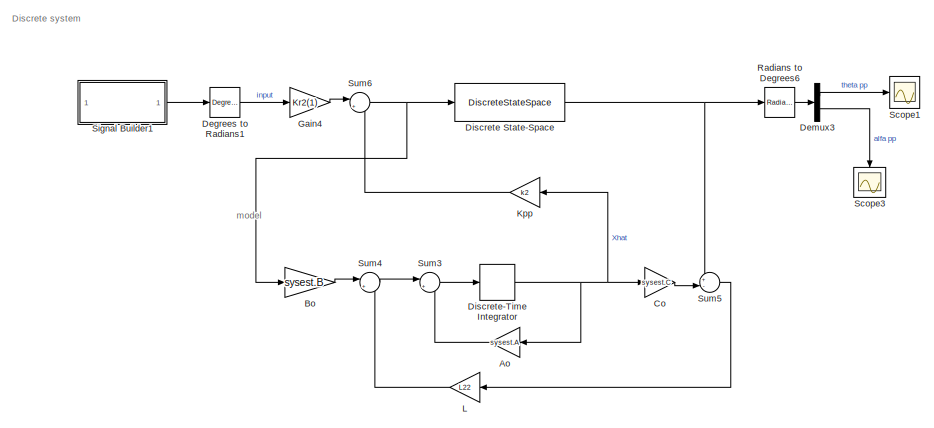
[diagram: root canvas - part 1/5, top right region]
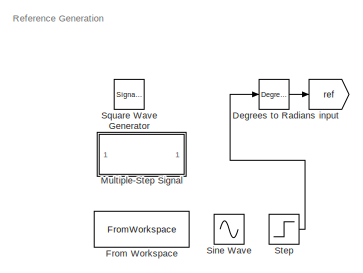
[diagram: root canvas - part 2/5, middle left region]
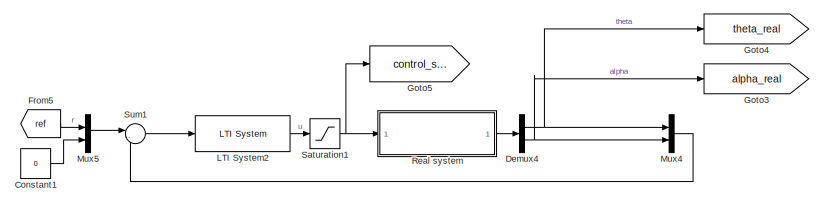
[diagram: root canvas - part 3/5, middle right region]
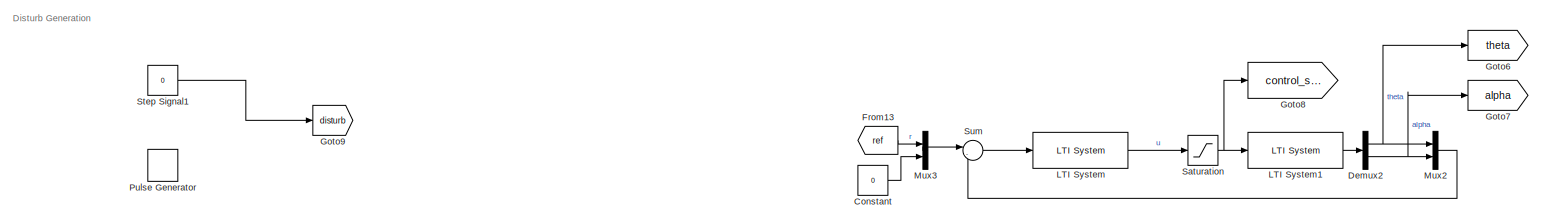
[diagram: root canvas - part 4/5, full width, bottom band]
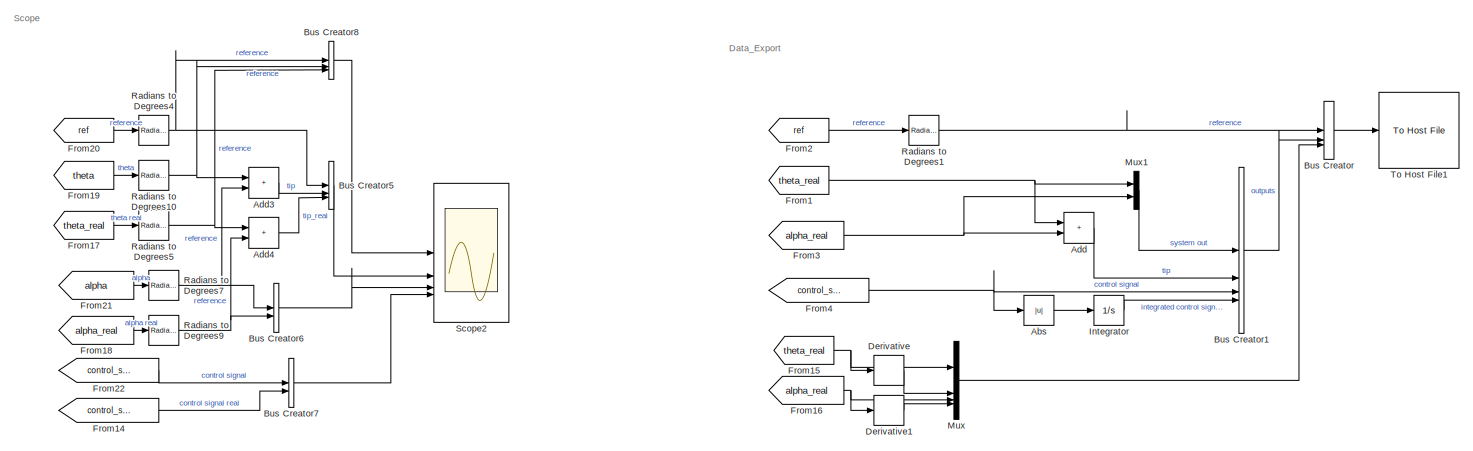
[diagram: root canvas - part 5/5, full width, bottom band]
MODEL slx_47b63cbfeedf
KIND model
CONFIG AbsTol = auto
CONFIG EnableMultiTasking = on
CONFIG FixedStep = 0.002
CONFIG MaxStep = auto
CONFIG MinStep = auto
CONFIG PostLoadFcn = qc_set_target_type(getConfigSet(bdroot, 'QUARC Default Target Configuration'));
CONFIG RelTol = 1e-3
CONFIG SampleTimeConstraint = Unconstrained
CONFIG SolverName = FixedStepAuto
CONFIG StartTime = 0.0
CONFIG StopTime = inf
BLOCK [Abs] Abs
  Commented = on
  SaturateOnIntegerOverflow = off
BLOCK [Sum] Add
  Commented = on
  IconShape = rectangular
BLOCK [Sum] Add3
  IconShape = rectangular
BLOCK [Sum] Add4
  IconShape = rectangular
BLOCK [Gain] Ao
  Commented = on
  Gain = sysest.A
  Multiplication = Matrix(K*u)
  NameLocation = top
BLOCK [Gain] Bo
  Commented = on
  Gain = sysest.B
  Multiplication = Matrix(K*u)
BLOCK [BusCreator] Bus Creator
  Commented = on
  DisplayOption = bar
  InheritFromInputs = on
  Inputs = 3
BLOCK [BusCreator] Bus Creator1
  Commented = on
  DisplayOption = bar
  InheritFromInputs = on
  Inputs = 4
BLOCK [BusCreator] Bus Creator5
  DisplayOption = bar
  InheritFromInputs = on
  Inputs = 3
BLOCK [BusCreator] Bus Creator6
  DisplayOption = bar
  InheritFromInputs = on
  Inputs = 2
BLOCK [BusCreator] Bus Creator7
  DisplayOption = bar
  InheritFromInputs = on
  Inputs = 2
BLOCK [BusCreator] Bus Creator8
  DisplayOption = bar
  InheritFromInputs = on
  Inputs = 3
BLOCK [Gain] Co
  Commented = on
  Gain = sysest.C
  Multiplication = Matrix(K*u)
BLOCK [Constant] Constant
  Value = 0
BLOCK [Constant] Constant1
  Commented = on
  Value = 0
BLOCK [Reference] Degrees to Radians  REF=simulink_extras/Transformations/Degrees to
Radians
  SourceBlock = simulink_extras/Transformations/Degrees to\nRadians
  SourceType = DegreesToRadians
BLOCK [Reference] Degrees to Radians1  REF=simulink_extras/Transformations/Degrees to
Radians
  Commented = on
  SourceBlock = simulink_extras/Transformations/Degrees to\nRadians
  SourceType = DegreesToRadians
BLOCK [Demux] Demux2
  Outputs = 2
BLOCK [Demux] Demux3
  Commented = on
  Outputs = 2
BLOCK [Demux] Demux4
  Commented = on
  Outputs = 2
BLOCK [Derivative] Derivative
  Commented = on
BLOCK [Derivative] Derivative1
  Commented = on
BLOCK [DiscreteStateSpace] Discrete State-Space
  A = sysest.A
  B = sysest.B
  C = sysest.C
  Commented = on
  D = sysest.D
  SampleTime = 0.002
BLOCK [DiscreteIntegrator] Discrete-Time Integrator
  Commented = on
  ICPrevOutput = DiscIntNeverNeededParam
  ICPrevScaledInput = DiscIntNeverNeededParam
  InitialConditionSetting = Auto
  SampleTime = 0.002
BLOCK [FromWorkspace] From Workspace
  Commented = on
  VariableName = reference_simulink
BLOCK [From] From1
  Commented = on
  GotoTag = theta_real
BLOCK [From] From13
  GotoTag = ref
BLOCK [From] From14
  GotoTag = control_signal_real
BLOCK [From] From15
  Commented = on
  GotoTag = theta_real
BLOCK [From] From16
  Commented = on
  GotoTag = alpha_real
BLOCK [From] From17
  GotoTag = theta_real
BLOCK [From] From18
  GotoTag = alpha_real
BLOCK [From] From19
  GotoTag = theta
BLOCK [From] From2
  Commented = on
  GotoTag = ref
BLOCK [From] From20
  GotoTag = ref
BLOCK [From] From21
  GotoTag = alpha
BLOCK [From] From22
  GotoTag = control_signal
BLOCK [From] From3
  Commented = on
  GotoTag = alpha_real
BLOCK [From] From4
  Commented = on
  GotoTag = control_signal
BLOCK [From] From5
  Commented = on
  GotoTag = ref
BLOCK [Gain] Gain4
  Commented = on
  Gain = Kr2(1)
BLOCK [Goto] Goto3
  Commented = on
  GotoTag = alpha_real
BLOCK [Goto] Goto4
  Commented = on
  GotoTag = theta_real
BLOCK [Goto] Goto5
  Commented = on
  GotoTag = control_signal_real
BLOCK [Goto] Goto6
  GotoTag = theta
BLOCK [Goto] Goto7
  GotoTag = alpha
BLOCK [Goto] Goto8
  GotoTag = control_signal
BLOCK [Goto] Goto9
  GotoTag = disturb
BLOCK [Integrator] Integrator
  Commented = on
BLOCK [Gain] Kpp
  Commented = on
  Gain = k2
  Multiplication = Matrix(K*u)
  NameLocation = top
BLOCK [Gain] L
  Commented = on
  Gain = L22
  Multiplication = Matrix(K*u)
  NameLocation = top
BLOCK [Reference] LTI System  REF=cstblocks/LTI System
  SourceBlock = cstblocks/LTI System
  SourceType = LTI Block
BLOCK [Reference] LTI System1  REF=cstblocks/LTI System
  SourceBlock = cstblocks/LTI System
  SourceType = LTI Block
BLOCK [Reference] LTI System2  REF=cstblocks/LTI System
  Commented = on
  SourceBlock = cstblocks/LTI System
  SourceType = LTI Block
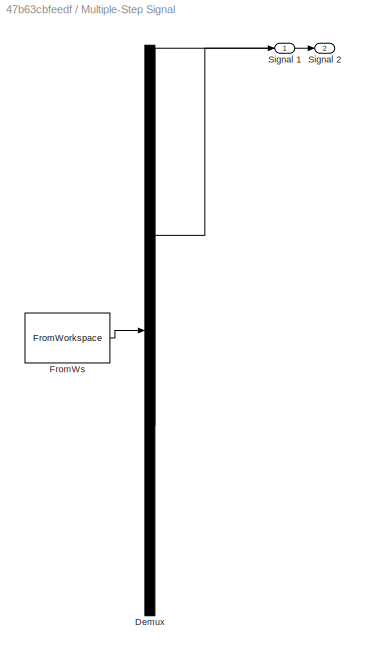
BLOCK [SubSystem] Multiple-Step Signal
  ClipboardFcn = sigbuilder_block('clipboard');
  CloseFcn = sigbuilder_block('close');
  ContinueFcn = sigbuilder_block('continue');
  CopyFcn = sigbuilder_block('copy');
  DeleteFcn = sigbuilder_block('delete');
  LoadFcn = sigbuilder_block('load');
  MaskHideContents = on
  ModelCloseFcn = sigbuilder_block('modelClose');
  NameChangeFcn = sigbuilder_block('namechange');
  OpenFcn = sigbuilder_block('open',[6 30 1428 681.75 ]);
  PauseFcn = sigbuilder_block('pause');
  PreSaveFcn = sigbuilder_block('preSave');
  StartFcn = sigbuilder_block('start');
  StopFcn = sigbuilder_block('stop');
  Tag = STV Subsys
BLOCK [Demux] Multiple-Step Signal/Demux
  DisplayOption = none
  Outputs = 2
  Tag = STV Demux
BLOCK [FromWorkspace] Multiple-Step Signal/FromWs
  Tag = STV FromWs
  VariableName = tuvar
BLOCK [Outport] Multiple-Step Signal/Signal 1
  Tag = STV Outport
BLOCK [Outport] Multiple-Step Signal/Signal 2
  Port = 2
  Tag = STV Outport
BLOCK [Mux] Mux
  Commented = on
  DisplayOption = bar
BLOCK [Mux] Mux1
  Commented = on
  DisplayOption = bar
  Inputs = 2
BLOCK [Mux] Mux2
  DisplayOption = bar
  Inputs = 2
BLOCK [Mux] Mux3
  DisplayOption = bar
  Inputs = 2
BLOCK [Mux] Mux4
  Commented = on
  DisplayOption = bar
  Inputs = 2
BLOCK [Mux] Mux5
  Commented = on
  DisplayOption = bar
  Inputs = 2
BLOCK [DiscretePulseGenerator] Pulse Generator
  Period = 10
  PulseType = Time based
  PulseWidth = 5
BLOCK [Reference] Radians to Degrees1  REF=simulink_extras/Transformations/Radians
to Degrees
  Commented = on
  SourceBlock = simulink_extras/Transformations/Radians\nto Degrees
  SourceType = RadiansToDegrees
BLOCK [Reference] Radians to Degrees10  REF=simulink_extras/Transformations/Radians
to Degrees
  SourceBlock = simulink_extras/Transformations/Radians\nto Degrees
  SourceType = RadiansToDegrees
BLOCK [Reference] Radians to Degrees4  REF=simulink_extras/Transformations/Radians
to Degrees
  SourceBlock = simulink_extras/Transformations/Radians\nto Degrees
  SourceType = RadiansToDegrees
BLOCK [Reference] Radians to Degrees5  REF=simulink_extras/Transformations/Radians
to Degrees
  SourceBlock = simulink_extras/Transformations/Radians\nto Degrees
  SourceType = RadiansToDegrees
BLOCK [Reference] Radians to Degrees6  REF=simulink_extras/Transformations/Radians
to Degrees
  Commented = on
  SourceBlock = simulink_extras/Transformations/Radians\nto Degrees
  SourceType = RadiansToDegrees
BLOCK [Reference] Radians to Degrees7  REF=simulink_extras/Transformations/Radians
to Degrees
  SourceBlock = simulink_extras/Transformations/Radians\nto Degrees
  SourceType = RadiansToDegrees
BLOCK [Reference] Radians to Degrees9  REF=simulink_extras/Transformations/Radians
to Degrees
  SourceBlock = simulink_extras/Transformations/Radians\nto Degrees
  SourceType = RadiansToDegrees
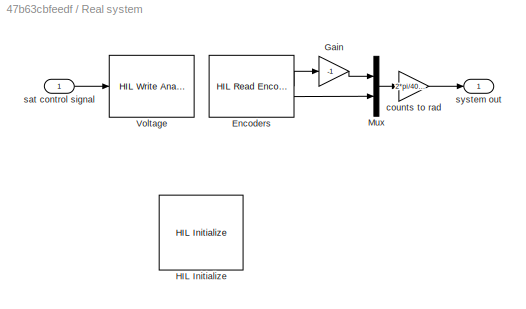
BLOCK [SubSystem] Real system
  Commented = on
BLOCK [Reference] Real system/Encoders  REF=quarc_library/Data Acquisition/Generic/Timebases/HIL Read Encoder
Timebase
  AttributesFormatString = (%<object_name>)
  SourceBlock = quarc_library/Data Acquisition/Generic/Timebases/HIL Read Encoder\nTimebase
  SourceType = HIL Read Encoder Timebase
  UserDataPersistent = on
BLOCK [Gain] Real system/Gain
  Gain = -1
BLOCK [Reference] Real system/HIL Initialize  REF=quarc_library/Data Acquisition/Generic/Configuration/HIL Initialize
  AttributesFormatString = %<object_name> (%<board_type>-%<board_number>)
  Priority = -99
  SourceBlock = quarc_library/Data Acquisition/Generic/Configuration/HIL Initialize
  SourceType = HIL Initialize
  UserDataPersistent = on
BLOCK [Mux] Real system/Mux
  DisplayOption = bar
  Inputs = 2
BLOCK [Reference] Real system/Voltage  REF=quarc_library/Data Acquisition/Generic/Immediate I//O/HIL Write Analog
  AttributesFormatString = (%<object_name>)
  SourceBlock = quarc_library/Data Acquisition/Generic/Immediate I//O/HIL Write Analog
  SourceType = HIL Write Analog
  UserDataPersistent = on
BLOCK [Gain] Real system/counts to rad
  Gain = 2*pi/4096
BLOCK [Inport] Real system/sat control signal
BLOCK [Outport] Real system/system out
BLOCK [Saturate] Saturation
  LowerLimit = -v_a_max
  UpperLimit = v_a_max
BLOCK [Saturate] Saturation1
  Commented = on
  LowerLimit = -v_a_max
  UpperLimit = v_a_max
BLOCK [Scope] Scope1
  Commented = on
  Floating = off
  NumInputPorts = 1
  ScopeSpecificationString = Simulink.scopes.TimeScopeBlockCfg('CurrentConfiguration', extmgr.ConfigurationSet(extmgr.Configuration('Core','General UI',true),extmgr.Configuration('Core','Source UI',true),extmgr.Configuration('Sources','WiredSimulink',true,'DataLoggingVariableName','ScopeData1'),extmgr.Configuration('Visuals','Time Domain',true,'SerializedDisplays',{struct('MinYLimReal','-7987.43396','MaxYLimReal','71886.90564...<+1393ch>
BLOCK [Scope] Scope2
  Floating = off
  NumInputPorts = 4
  ScopeSpecificationString = Simulink.scopes.TimeScopeBlockCfg('CurrentConfiguration', extmgr.ConfigurationSet(extmgr.Configuration('Core','General UI',true,'FigureColor',[1 1 1]),extmgr.Configuration('Core','Source UI',true),extmgr.Configuration('Sources','WiredSimulink',true,'DataLoggingVariableName','ScopeData1'),extmgr.Configuration('Visuals','Time Domain',true,'SerializedDisplays',{struct('MinYLimReal','-5.83854','MaxYLi...<+4523ch>
BLOCK [Scope] Scope3
  Commented = on
  Floating = off
  NameLocation = left
  NumInputPorts = 1
  ScopeSpecificationString = Simulink.scopes.TimeScopeBlockCfg('CurrentConfiguration', extmgr.ConfigurationSet(extmgr.Configuration('Core','General UI',true),extmgr.Configuration('Core','Source UI',true),extmgr.Configuration('Sources','WiredSimulink',true,'DataLoggingVariableName','ScopeData2'),extmgr.Configuration('Visuals','Time Domain',true,'SerializedDisplays',{struct('MinYLimReal','-5.40954','MaxYLimReal','28.86792','YLa...<+1370ch>
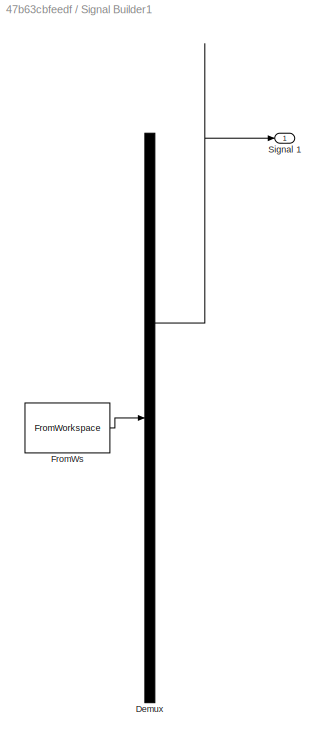
BLOCK [SubSystem] Signal Builder1
  ClipboardFcn = sigbuilder_block('clipboard');
  CloseFcn = sigbuilder_block('close');
  Commented = on
  ContinueFcn = sigbuilder_block('continue');
  CopyFcn = sigbuilder_block('copy');
  DeleteFcn = sigbuilder_block('delete');
  LoadFcn = sigbuilder_block('load');
  MaskHideContents = on
  ModelCloseFcn = sigbuilder_block('modelClose');
  NameChangeFcn = sigbuilder_block('namechange');
  OpenFcn = sigbuilder_block('open',[437.6 199.2 550.4 400 ]);
  PauseFcn = sigbuilder_block('pause');
  PreSaveFcn = sigbuilder_block('preSave');
  StartFcn = sigbuilder_block('start');
  StopFcn = sigbuilder_block('stop');
  Tag = STV Subsys
BLOCK [Demux] Signal Builder1/Demux
  DisplayOption = none
  Outputs = 1
  Tag = STV Demux
BLOCK [FromWorkspace] Signal Builder1/FromWs
  Tag = STV FromWs
  VariableName = tuvar
BLOCK [Outport] Signal Builder1/Signal 1
  Tag = STV Outport
BLOCK [Sin] Sine Wave
  Amplitude = 15
  Frequency = 4
  SampleTime = 0
BLOCK [SignalGenerator] Square Wave Generator
  Amplitude = 20
  Frequency = 3
  Units = rad/sec
  WaveForm = square
BLOCK [Step] Step
  After = 45
  SampleTime = 0
BLOCK [Constant] Step Signal1
  Value = 0
BLOCK [Sum] Sum
  Inputs = |-+
BLOCK [Sum] Sum1
  Commented = on
  Inputs = |-+
BLOCK [Sum] Sum3
  Commented = on
  Inputs = |++
BLOCK [Sum] Sum4
  Commented = on
  Inputs = |++
BLOCK [Sum] Sum5
  Commented = on
  Inputs = +-|
BLOCK [Sum] Sum6
  Commented = on
  Inputs = |+-
BLOCK [Reference] To Host File1  REF=quarc_library/Sinks/To Host/To Host File
  AttributesFormatString = %<final_file_name>
  Commented = on
  SourceBlock = quarc_library/Sinks/To Host/To Host File
  SourceType = To Host File
BLOCK [Goto] input
  GotoTag = ref
ANNOTATION (root): Data_Export
ANNOTATION (root): Discrete system
ANNOTATION (root): Disturb Generation
ANNOTATION (root): Reference Generation
ANNOTATION (root): Scope
ANNOTATION (root): model
LINE Abs:1 -> Integrator:1
LINE Add3:1 -> Bus Creator5:2
LINE Add4:1 -> Bus Creator5:3
LINE Add:1 -> Bus Creator1:2
LINE Ao:1 -> Sum3:2
LINE Bo:1 -> Sum4:1
LINE Bus Creator1:1 -> Bus Creator:2
LINE Bus Creator5:1 -> Scope2:2
LINE Bus Creator6:1 -> Scope2:3
LINE Bus Creator7:1 -> Scope2:4
LINE Bus Creator8:1 -> Scope2:1
LINE Bus Creator:1 -> To Host File1:1
LINE Co:1 -> Sum5:2
LINE Constant1:1 -> Mux5:2
LINE Constant:1 -> Mux3:2
LINE Degrees to Radians1:1 -> Gain4:1
LINE Degrees to Radians:1 -> input:1
NET Demux2:1 -> Goto6:1, Mux2:1
NET Demux2:2 -> Goto7:1, Mux2:2
LINE Demux3:1 -> Scope1:1
LINE Demux3:2 -> Scope3:1
NET Demux4:1 -> Goto4:1, Mux4:1
NET Demux4:2 -> Goto3:1, Mux4:2
LINE Derivative1:1 -> Mux:4
LINE Derivative:1 -> Mux:2
NET Discrete State-Space:1 -> Radians to Degrees6:1, Sum5:1
NET Discrete-Time Integrator:1 -> Ao:1, Co:1, Kpp:1
LINE From13:1 -> Mux3:1
LINE From14:1 -> Bus Creator7:2
NET From15:1 -> Derivative:1, Mux:1
NET From16:1 -> Derivative1:1, Mux:3
LINE From17:1 -> Radians to Degrees5:1
LINE From18:1 -> Radians to Degrees9:1
LINE From19:1 -> Radians to Degrees10:1
NET From1:1 -> Add:1, Mux1:1
LINE From20:1 -> Radians to Degrees4:1
LINE From21:1 -> Radians to Degrees7:1
LINE From22:1 -> Bus Creator7:1
LINE From2:1 -> Radians to Degrees1:1
NET From3:1 -> Add:2, Mux1:2
NET From4:1 -> Abs:1, Bus Creator1:3
LINE From5:1 -> Mux5:1
LINE Gain4:1 -> Sum6:1
LINE Integrator:1 -> Bus Creator1:4
LINE Kpp:1 -> Sum6:2
LINE L:1 -> Sum4:2
LINE LTI System1:1 -> Demux2:1
LINE LTI System2:1 -> Saturation1:1
LINE LTI System:1 -> Saturation:1
LINE Mux1:1 -> Bus Creator1:1
LINE Mux2:1 -> Sum:2
LINE Mux3:1 -> Sum:1
LINE Mux4:1 -> Sum1:2
LINE Mux5:1 -> Sum1:1
LINE Mux:1 -> Bus Creator:3
NET Radians to Degrees10:1 -> Add3:1, Bus Creator8:2
LINE Radians to Degrees1:1 -> Bus Creator:1
NET Radians to Degrees4:1 -> Bus Creator5:1, Bus Creator8:1
NET Radians to Degrees5:1 -> Add4:1, Bus Creator8:3
LINE Radians to Degrees6:1 -> Demux3:1
NET Radians to Degrees7:1 -> Add3:2, Bus Creator6:1
NET Radians to Degrees9:1 -> Add4:2, Bus Creator6:2
LINE Real system/Encoders:1 -> Real system/Gain:1
LINE Real system/Encoders:2 -> Real system/Mux:2
LINE Real system/Gain:1 -> Real system/Mux:1
LINE Real system/Mux:1 -> Real system/counts to rad:1
LINE Real system/counts to rad:1 -> Real system/system out:1
LINE Real system/sat control signal:1 -> Real system/Voltage:1
LINE Real system:1 -> Demux4:1
NET Saturation1:1 -> Goto5:1, Real system:1
NET Saturation:1 -> Goto8:1, LTI System1:1
LINE Signal Builder1:1 -> Degrees to Radians1:1
LINE Step Signal1:1 -> Goto9:1
LINE Step:1 -> Degrees to Radians:1
LINE Sum1:1 -> LTI System2:1
LINE Sum3:1 -> Discrete-Time Integrator:1
LINE Sum4:1 -> Sum3:1
LINE Sum5:1 -> L:1
NET Sum6:1 -> Bo:1, Discrete State-Space:1
LINE Sum:1 -> LTI System:1
note: NET lines group one-source signal fan-out (src -> all destinations, sorted); 1:1 wires keep LINE
